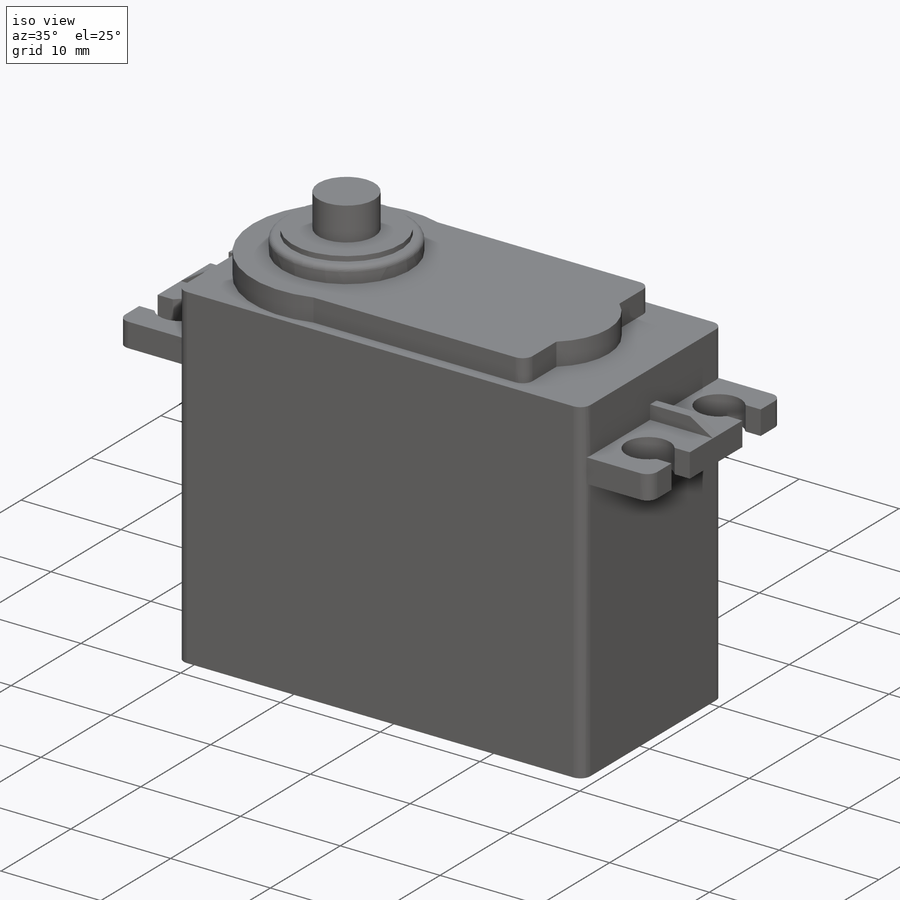
[diagram: iso view]
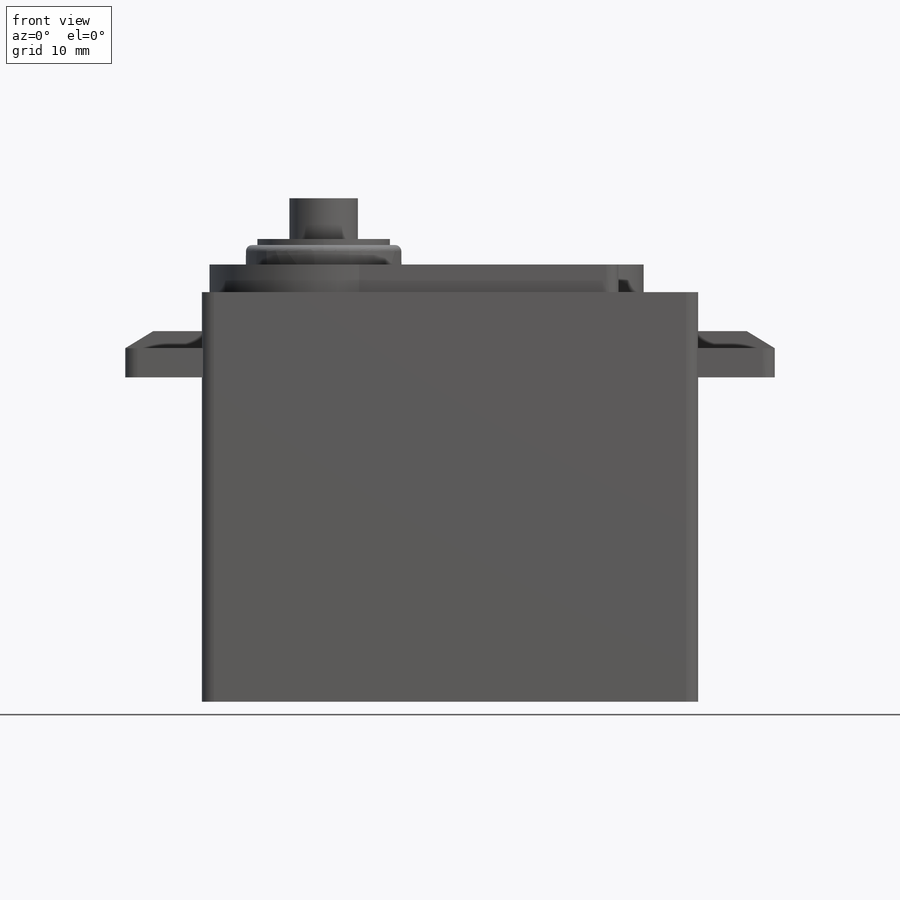
[diagram: front view]
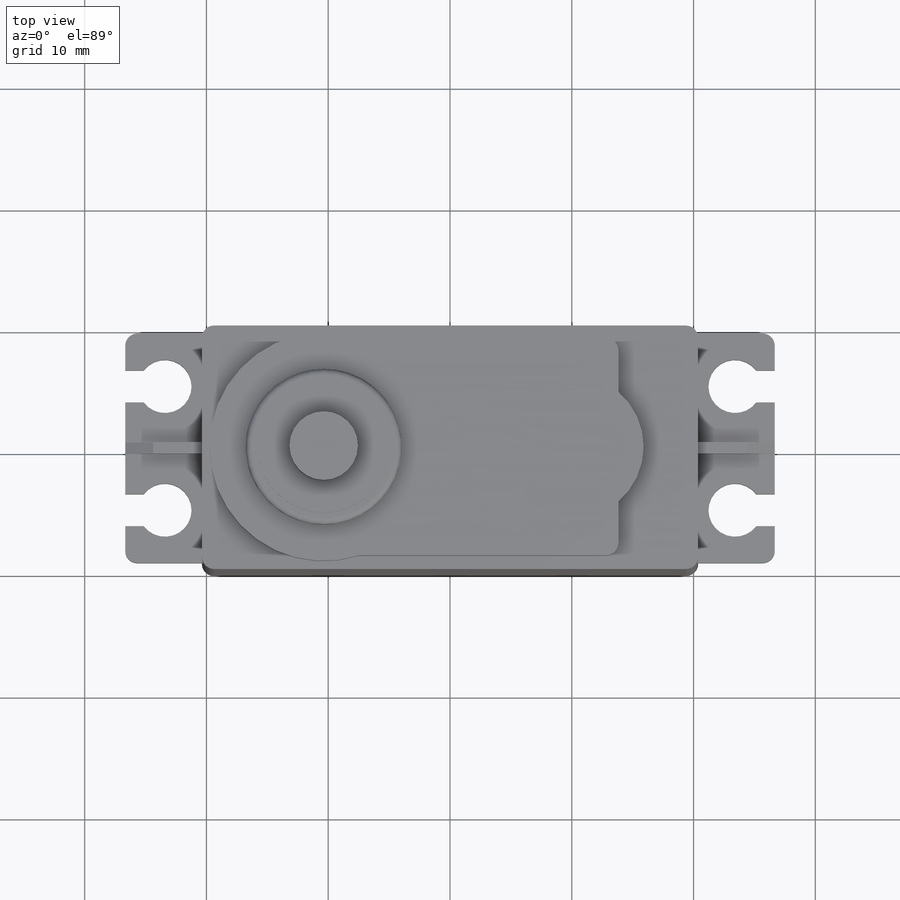
[diagram: top view]
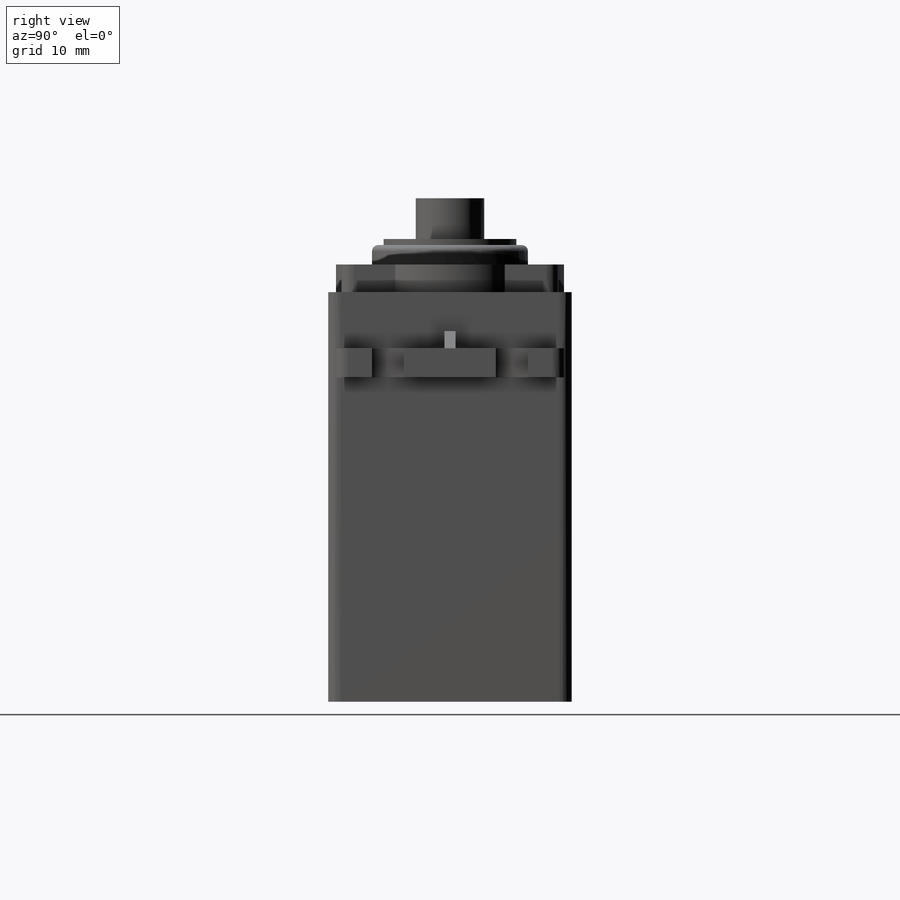
[diagram: right view]
SOLIDWORKS PART (.sldprt)
format: sldprt  version: not decoded by parser v0  size: 312,832 bytes
history: native  units: mm
features: sketch x8, extrude x6, mirror x2, fillet x2, material x1, cut_extrude x1 (+12 scaffold rows collapsed)
feature tree (32):
  scaffold x12  (default folders/planes/origin — collapsed)
  material  "Material <not specified>"
  sketch  "Sketch1"  dims[c1.D1=~76.055682mm c1.D2=~109.313005mm c2.D1=33.63mm c2.D2=40.75mm]
  extrude  "Boss-Extrude1"  Depth=20mm
  sketch  "Sketch2"  dims[c1.D2=18.75mm c1.D3=18.75mm c1.D4=~8.343966mm c1.D1=~12.822169mm c2.D2=~24.761653mm c2.D1=17.82mm c2.D3=33.57mm c2.D4=~0.731541mm c2.D5=~28.255779mm c3.D4=35.65mm c3.D5=9.0mm]
  extrude  "Boss-Extrude2"  Depth=35.9mm
  sketch  "Sketch3"  dims[D1=12.8mm]
  extrude  "Boss-Extrude3"  Depth=37.5mm
  sketch  "Sketch4"  dims[D1=10.9mm]
  extrude  "Boss-Extrude4"  Depth=38mm
  sketch  "Sketch5"  dims[D1=5.62mm]
  extrude  "Boss-Extrude5"  Depth=41.34mm
  sketch  "Sketch6"  dims[c1.D1=~17.741422mm c1.D2=~7.722275mm c2.D1=18.85mm c2.D2=53.34mm]
  extrude  "Boss-Extrude6"  Depth=2.4mm
  sketch  "Sketch7"  dims[c1.D1=3.8mm c1.D2=4.0mm c1.D3=~2.688313mm c2.D1=0.92mm]
  sketch  "Sketch10"  dims[D1=4.3688mm D2=33.782mm D3=2.63mm D4=10.16mm D5=2.63mm]
  cut_extrude  "Cut-Extrude2"  [1 undecoded]
  mirror  "Mirror2"
  mirror  "Mirror1"
  fillet  "Fillet2"  Radius=1mm
  fillet  "Fillet3"  Radius=0.5mm
decode coverage: 16 of 19 modeling features carry decoded parameters
note: ~ marks probable driven/reference dimensions
note: 1 parameter value undecoded
note: suppression state not decoded; provenance and decode notes live in map.json
